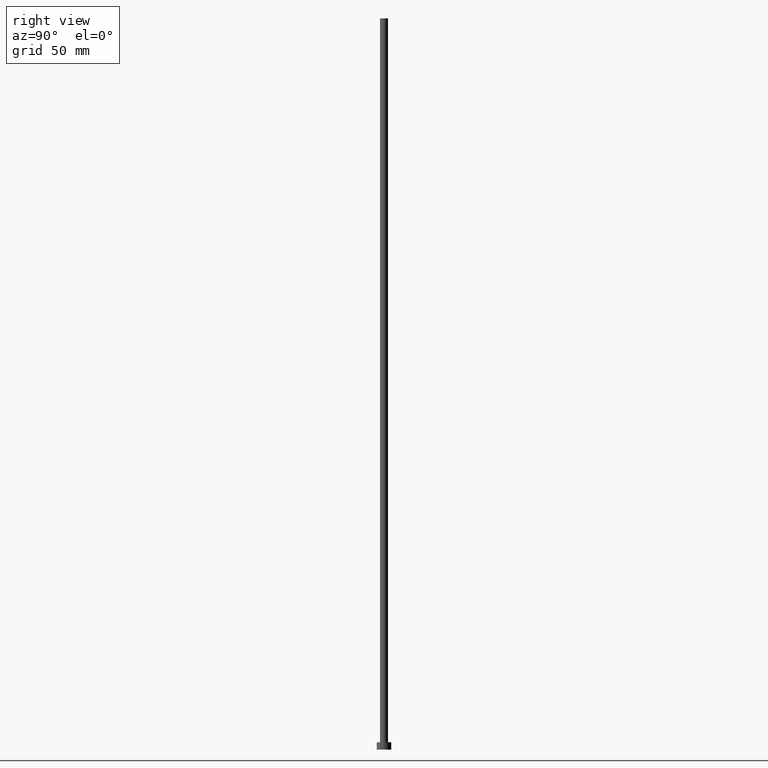
[diagram: clean part render]
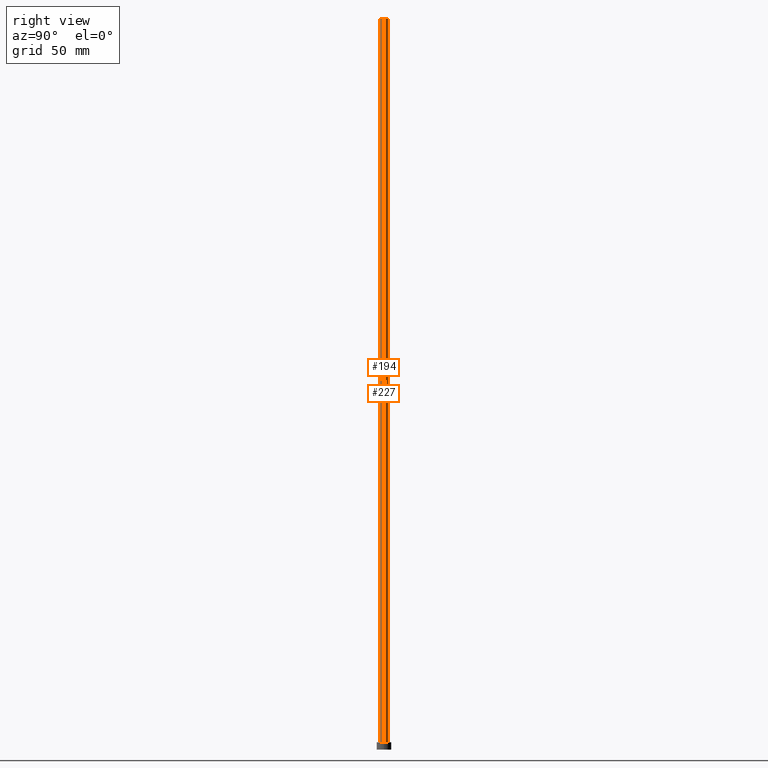
[diagram: same view with one multi-face feature highlighted, each face labeled with its STEP entity id]
A machine part, right view. The highlighted faces form ONE feature: a constant-radius fillet chain: 2 tangent blend faces with common blend radius 2.75 mm. The faces share edges in the B-rep.
Their STEP definitions:
[1] entity #227 (Cylinder):
#6 = DIRECTION ( 'NONE',  ( 1.000000000000000000, 0.000000000000000000, 0.000000000000000000 ) ) ;
#14 = CIRCLE ( 'NONE', #164, 2.750000000000000000 ) ;
#19 = ORIENTED_EDGE ( 'NONE', *, *, #211, .F. ) ;
#25 = AXIS2_PLACEMENT_3D ( 'NONE', #192, #50, #88 ) ;
#27 = CYLINDRICAL_SURFACE ( 'NONE', #25, 2.750000000000000000 ) ;
#37 = VECTOR ( 'NONE', #106, 1000.000000000000000 ) ;
#40 = EDGE_LOOP ( 'NONE', ( #178, #97, #94, #19 ) ) ;
#45 = DIRECTION ( 'NONE',  ( 1.000000000000000000, 0.000000000000000000, 0.000000000000000000 ) ) ;
#50 = DIRECTION ( 'NONE',  ( -0.000000000000000000, -0.000000000000000000, -1.000000000000000000 ) ) ;
#67 = EDGE_CURVE ( 'NONE', #219, #250, #14, .T. ) ;
#75 = VERTEX_POINT ( 'NONE', #240 ) ;
#82 = DIRECTION ( 'NONE',  ( 0.000000000000000000, 0.000000000000000000, 1.000000000000000000 ) ) ;
#85 = CARTESIAN_POINT ( 'NONE',  ( 2.750000000000000000, 3.367778697655221012E-16, 500.0000000000000000 ) ) ;
#88 = DIRECTION ( 'NONE',  ( -1.000000000000000000, 0.000000000000000000, 0.000000000000000000 ) ) ;
#90 = VECTOR ( 'NONE', #245, 1000.000000000000000 ) ;
#94 = ORIENTED_EDGE ( 'NONE', *, *, #198, .T. ) ;
#97 = ORIENTED_EDGE ( 'NONE', *, *, #249, .T. ) ;
#100 = LINE ( 'NONE', #167, #90 ) ;
#106 = DIRECTION ( 'NONE',  ( -0.000000000000000000, -0.000000000000000000, -1.000000000000000000 ) ) ;
#108 = CARTESIAN_POINT ( 'NONE',  ( 2.750000000000000000, 3.367778697655221012E-16, 5.000000000000000000 ) ) ;
#131 = LINE ( 'NONE', #85, #37 ) ;
#141 = DIRECTION ( 'NONE',  ( 0.000000000000000000, 0.000000000000000000, 1.000000000000000000 ) ) ;
#153 = CIRCLE ( 'NONE', #206, 2.750000000000000000 ) ;
#164 = AXIS2_PLACEMENT_3D ( 'NONE', #188, #141, #6 ) ;
#167 = CARTESIAN_POINT ( 'NONE',  ( -2.750000000000000000, 0.000000000000000000, 500.0000000000000000 ) ) ;
#171 = CARTESIAN_POINT ( 'NONE',  ( -2.750000000000000000, 0.000000000000000000, 500.0000000000000000 ) ) ;
#173 = CARTESIAN_POINT ( 'NONE',  ( 2.750000000000000000, 3.367778697655221012E-16, 500.0000000000000000 ) ) ;
#178 = ORIENTED_EDGE ( 'NONE', *, *, #67, .F. ) ;
#188 = CARTESIAN_POINT ( 'NONE',  ( 0.000000000000000000, 0.000000000000000000, 500.0000000000000000 ) ) ;
#192 = CARTESIAN_POINT ( 'NONE',  ( 0.000000000000000000, 0.000000000000000000, 500.0000000000000000 ) ) ;
#198 = EDGE_CURVE ( 'NONE', #217, #75, #153, .T. ) ;
#206 = AXIS2_PLACEMENT_3D ( 'NONE', #225, #82, #45 ) ;
#210 = FACE_OUTER_BOUND ( 'NONE', #40, .T. ) ;
#211 = EDGE_CURVE ( 'NONE', #250, #75, #100, .T. ) ;
#217 = VERTEX_POINT ( 'NONE', #108 ) ;
#219 = VERTEX_POINT ( 'NONE', #173 ) ;
#225 = CARTESIAN_POINT ( 'NONE',  ( 0.000000000000000000, 0.000000000000000000, 5.000000000000000000 ) ) ;
#227 = ADVANCED_FACE ( 'NONE', ( #210 ), #27, .T. ) ;
#240 = CARTESIAN_POINT ( 'NONE',  ( -2.750000000000000000, 0.000000000000000000, 5.000000000000000000 ) ) ;
#245 = DIRECTION ( 'NONE',  ( -0.000000000000000000, -0.000000000000000000, -1.000000000000000000 ) ) ;
#249 = EDGE_CURVE ( 'NONE', #219, #217, #131, .T. ) ;
#250 = VERTEX_POINT ( 'NONE', #171 ) ;
[2] entity #194 (Cylinder):
#3 = CARTESIAN_POINT ( 'NONE',  ( 0.000000000000000000, 0.000000000000000000, 500.0000000000000000 ) ) ;
#22 = EDGE_CURVE ( 'NONE', #75, #217, #60, .T. ) ;
#23 = DIRECTION ( 'NONE',  ( 1.000000000000000000, 0.000000000000000000, 0.000000000000000000 ) ) ;
#37 = VECTOR ( 'NONE', #106, 1000.000000000000000 ) ;
#57 = ORIENTED_EDGE ( 'NONE', *, *, #22, .T. ) ;
#59 = EDGE_CURVE ( 'NONE', #250, #219, #238, .T. ) ;
#60 = CIRCLE ( 'NONE', #209, 2.750000000000000000 ) ;
#61 = DIRECTION ( 'NONE',  ( 1.000000000000000000, 0.000000000000000000, 0.000000000000000000 ) ) ;
#75 = VERTEX_POINT ( 'NONE', #240 ) ;
#80 = CARTESIAN_POINT ( 'NONE',  ( 0.000000000000000000, 0.000000000000000000, 5.000000000000000000 ) ) ;
#83 = DIRECTION ( 'NONE',  ( 0.000000000000000000, 0.000000000000000000, 1.000000000000000000 ) ) ;
#85 = CARTESIAN_POINT ( 'NONE',  ( 2.750000000000000000, 3.367778697655221012E-16, 500.0000000000000000 ) ) ;
#90 = VECTOR ( 'NONE', #245, 1000.000000000000000 ) ;
#100 = LINE ( 'NONE', #167, #90 ) ;
#104 = CARTESIAN_POINT ( 'NONE',  ( 0.000000000000000000, 0.000000000000000000, 500.0000000000000000 ) ) ;
#106 = DIRECTION ( 'NONE',  ( -0.000000000000000000, -0.000000000000000000, -1.000000000000000000 ) ) ;
#108 = CARTESIAN_POINT ( 'NONE',  ( 2.750000000000000000, 3.367778697655221012E-16, 5.000000000000000000 ) ) ;
#111 = AXIS2_PLACEMENT_3D ( 'NONE', #3, #224, #146 ) ;
#129 = AXIS2_PLACEMENT_3D ( 'NONE', #104, #83, #61 ) ;
#131 = LINE ( 'NONE', #85, #37 ) ;
#139 = ORIENTED_EDGE ( 'NONE', *, *, #211, .T. ) ;
#146 = DIRECTION ( 'NONE',  ( -1.000000000000000000, 0.000000000000000000, 0.000000000000000000 ) ) ;
#162 = DIRECTION ( 'NONE',  ( 0.000000000000000000, 0.000000000000000000, 1.000000000000000000 ) ) ;
#167 = CARTESIAN_POINT ( 'NONE',  ( -2.750000000000000000, 0.000000000000000000, 500.0000000000000000 ) ) ;
#171 = CARTESIAN_POINT ( 'NONE',  ( -2.750000000000000000, 0.000000000000000000, 500.0000000000000000 ) ) ;
#173 = CARTESIAN_POINT ( 'NONE',  ( 2.750000000000000000, 3.367778697655221012E-16, 500.0000000000000000 ) ) ;
#187 = CYLINDRICAL_SURFACE ( 'NONE', #111, 2.750000000000000000 ) ;
#194 = ADVANCED_FACE ( 'NONE', ( #222 ), #187, .T. ) ;
#209 = AXIS2_PLACEMENT_3D ( 'NONE', #80, #162, #23 ) ;
#211 = EDGE_CURVE ( 'NONE', #250, #75, #100, .T. ) ;
#217 = VERTEX_POINT ( 'NONE', #108 ) ;
#219 = VERTEX_POINT ( 'NONE', #173 ) ;
#221 = ORIENTED_EDGE ( 'NONE', *, *, #59, .F. ) ;
#222 = FACE_OUTER_BOUND ( 'NONE', #255, .T. ) ;
#224 = DIRECTION ( 'NONE',  ( -0.000000000000000000, -0.000000000000000000, -1.000000000000000000 ) ) ;
#226 = ORIENTED_EDGE ( 'NONE', *, *, #249, .F. ) ;
#238 = CIRCLE ( 'NONE', #129, 2.750000000000000000 ) ;
#240 = CARTESIAN_POINT ( 'NONE',  ( -2.750000000000000000, 0.000000000000000000, 5.000000000000000000 ) ) ;
#245 = DIRECTION ( 'NONE',  ( -0.000000000000000000, -0.000000000000000000, -1.000000000000000000 ) ) ;
#249 = EDGE_CURVE ( 'NONE', #219, #217, #131, .T. ) ;
#250 = VERTEX_POINT ( 'NONE', #171 ) ;
#255 = EDGE_LOOP ( 'NONE', ( #226, #221, #139, #57 ) ) ;